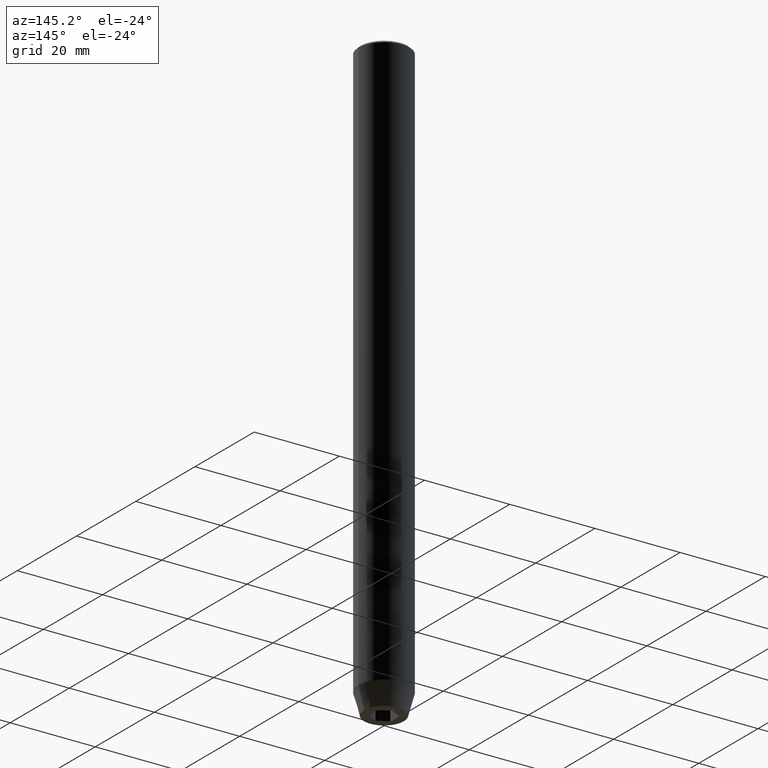
[diagram: clean part render]
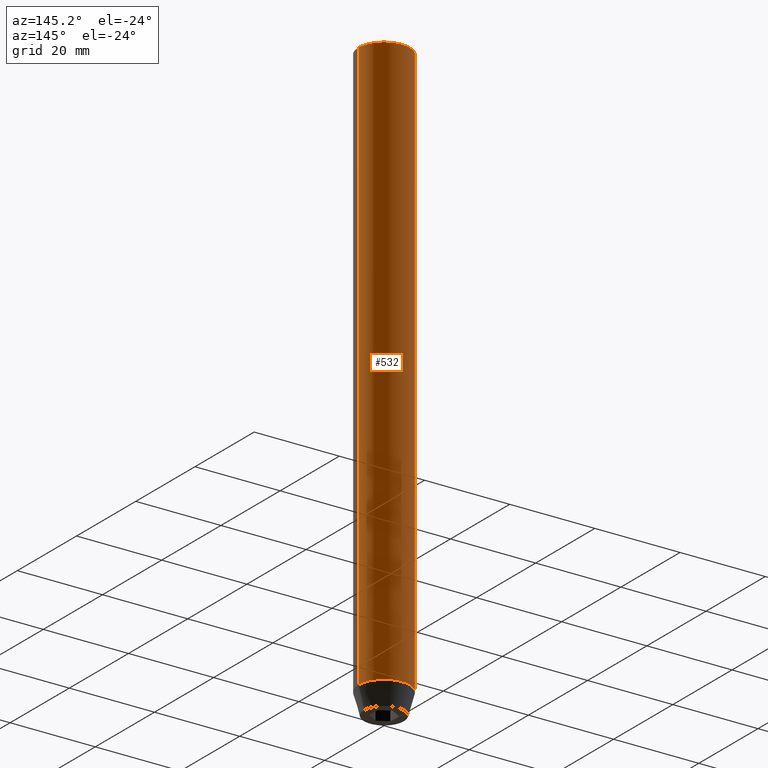
[diagram: same view with one face highlighted and labeled with its STEP entity id]
A machine part, auxiliary view. The second image highlights one B-rep face of the part: STEP entity #532.
In plain terms, the highlighted cylindrical surface (edge-blend (fillet) strip) has radius 6 mm, axis along (-0, -0, 1).
Its self-contained STEP definition (entity closure, byte-faithful):
#4 = VERTEX_POINT ( 'NONE', #152 ) ;
#47 = DIRECTION ( 'NONE',  ( 1.000000000000000000, 0.000000000000000000, 0.000000000000000000 ) ) ;
#55 = CARTESIAN_POINT ( 'NONE',  ( 0.000000000000000000, 0.000000000000000000, 0.000000000000000000 ) ) ;
#57 = ORIENTED_EDGE ( 'NONE', *, *, #468, .T. ) ;
#77 = VERTEX_POINT ( 'NONE', #506 ) ;
#81 = VECTOR ( 'NONE', #218, 1000.000000000000000 ) ;
#87 = LINE ( 'NONE', #356, #265 ) ;
#97 = EDGE_CURVE ( 'NONE', #4, #77, #472, .T. ) ;
#110 = EDGE_LOOP ( 'NONE', ( #360, #404, #57, #367 ) ) ;
#124 = VERTEX_POINT ( 'NONE', #154 ) ;
#152 = CARTESIAN_POINT ( 'NONE',  ( 6.000000000000000000, 0.000000000000000000, -135.0000000000000000 ) ) ;
#154 = CARTESIAN_POINT ( 'NONE',  ( 6.000000000000000000, 0.000000000000000000, -0.4999999999999614197 ) ) ;
#177 = LINE ( 'NONE', #271, #81 ) ;
#186 = DIRECTION ( 'NONE',  ( 1.000000000000000000, 0.000000000000000000, 0.000000000000000000 ) ) ;
#211 = DIRECTION ( 'NONE',  ( 1.000000000000000000, 0.000000000000000000, 0.000000000000000000 ) ) ;
#218 = DIRECTION ( 'NONE',  ( -0.000000000000000000, -0.000000000000000000, 1.000000000000000000 ) ) ;
#222 = DIRECTION ( 'NONE',  ( 0.000000000000000000, 0.000000000000000000, -1.000000000000000000 ) ) ;
#265 = VECTOR ( 'NONE', #438, 1000.000000000000000 ) ;
#271 = CARTESIAN_POINT ( 'NONE',  ( 6.000000000000000000, 0.000000000000000000, 0.000000000000000000 ) ) ;
#328 = DIRECTION ( 'NONE',  ( -0.000000000000000000, -0.000000000000000000, 1.000000000000000000 ) ) ;
#356 = CARTESIAN_POINT ( 'NONE',  ( -6.000000000000000000, 7.347880794884119736E-16, 0.000000000000000000 ) ) ;
#360 = ORIENTED_EDGE ( 'NONE', *, *, #97, .T. ) ;
#367 = ORIENTED_EDGE ( 'NONE', *, *, #430, .F. ) ;
#372 = CARTESIAN_POINT ( 'NONE',  ( -6.000000000000000000, 7.347880794884119736E-16, -0.4999999999999614197 ) ) ;
#374 = AXIS2_PLACEMENT_3D ( 'NONE', #503, #456, #186 ) ;
#379 = CYLINDRICAL_SURFACE ( 'NONE', #474, 6.000000000000000000 ) ;
#404 = ORIENTED_EDGE ( 'NONE', *, *, #419, .T. ) ;
#410 = AXIS2_PLACEMENT_3D ( 'NONE', #446, #222, #211 ) ;
#419 = EDGE_CURVE ( 'NONE', #77, #571, #87, .T. ) ;
#430 = EDGE_CURVE ( 'NONE', #4, #124, #177, .T. ) ;
#438 = DIRECTION ( 'NONE',  ( -0.000000000000000000, -0.000000000000000000, 1.000000000000000000 ) ) ;
#446 = CARTESIAN_POINT ( 'NONE',  ( 0.000000000000000000, 0.000000000000000000, -0.4999999999999614197 ) ) ;
#456 = DIRECTION ( 'NONE',  ( -0.000000000000000000, -0.000000000000000000, 1.000000000000000000 ) ) ;
#468 = EDGE_CURVE ( 'NONE', #571, #124, #484, .T. ) ;
#472 = CIRCLE ( 'NONE', #374, 6.000000000000000000 ) ;
#474 = AXIS2_PLACEMENT_3D ( 'NONE', #55, #328, #47 ) ;
#484 = CIRCLE ( 'NONE', #410, 6.000000000000000000 ) ;
#496 = FACE_OUTER_BOUND ( 'NONE', #110, .T. ) ;
#503 = CARTESIAN_POINT ( 'NONE',  ( 0.000000000000000000, 0.000000000000000000, -135.0000000000000000 ) ) ;
#506 = CARTESIAN_POINT ( 'NONE',  ( -6.000000000000000000, 7.347880794884119736E-16, -135.0000000000000000 ) ) ;
#532 = ADVANCED_FACE ( 'NONE', ( #496 ), #379, .T. ) ;
#571 = VERTEX_POINT ( 'NONE', #372 ) ;